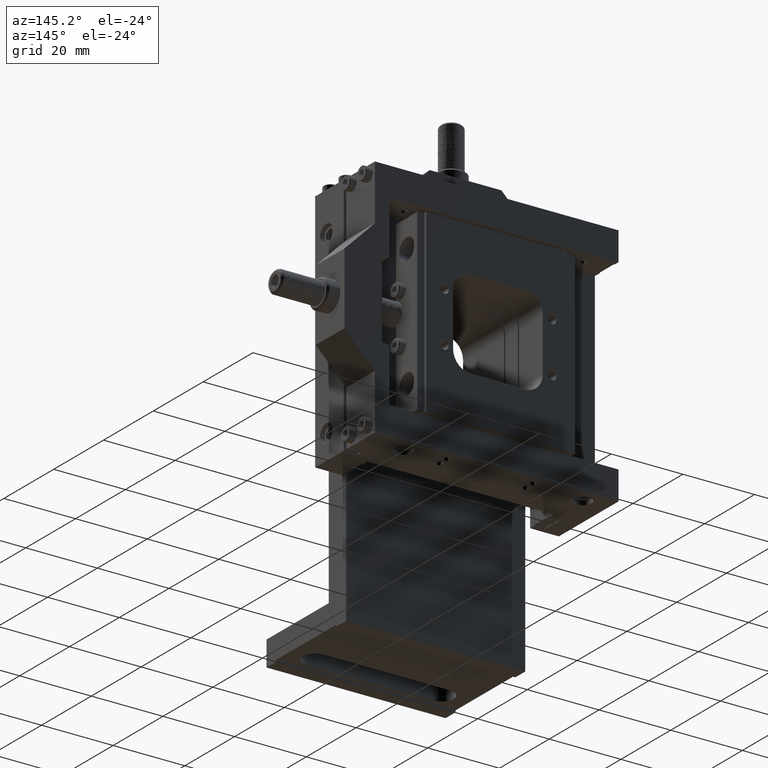
[diagram: clean part render]
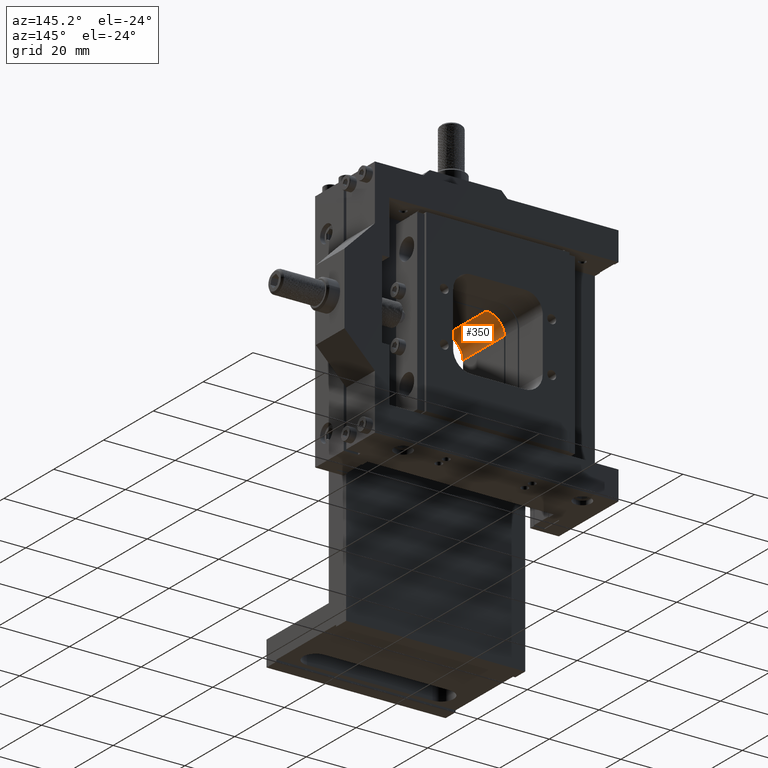
[diagram: same view with one face highlighted and labeled with its STEP entity id]
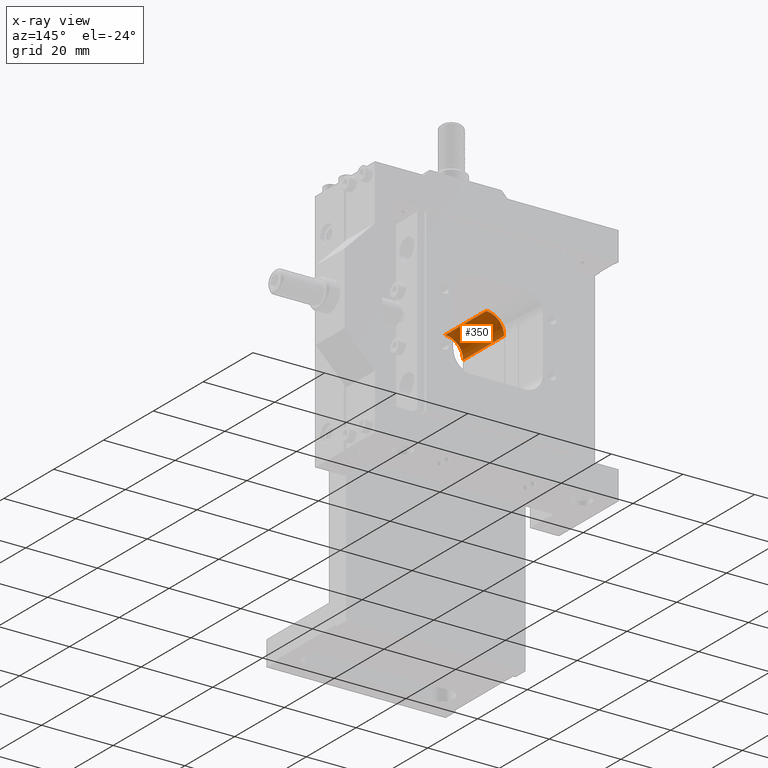
[diagram: x-ray of the same camera — body ghosted, the highlighted face saturated]
A machine part, auxiliary view. The second image highlights one B-rep face of the part: STEP entity #350.
The next image is the same camera in x-ray: the body ghosted, the highlighted face saturated — about 2% of this face is hidden behind the body in this view.
In plain terms, the highlighted cylindrical surface (edge-blend (fillet) strip) has radius 5 mm, axis along (0, -1, 0).
Its self-contained STEP definition (entity closure, byte-faithful):
#350=ADVANCED_FACE('',(#1875),#22283,.F.);
#1875=FACE_OUTER_BOUND('',#3412,.T.);
#3412=EDGE_LOOP('',(#5560,#5561,#5562,#5563,#5564));
#5560=ORIENTED_EDGE('',*,*,#12897,.F.);
#5561=ORIENTED_EDGE('',*,*,#12894,.T.);
#5562=ORIENTED_EDGE('',*,*,#12898,.F.);
#5563=ORIENTED_EDGE('',*,*,#12899,.F.);
#5564=ORIENTED_EDGE('',*,*,#12896,.F.);
#12894=EDGE_CURVE('',#20329,#20154,#17527,.T.);
#12896=EDGE_CURVE('',#20330,#20195,#17529,.T.);
#12897=EDGE_CURVE('',#20329,#20330,#16419,.T.);
#12898=EDGE_CURVE('',#20153,#20154,#16420,.T.);
#12899=EDGE_CURVE('',#20195,#20153,#16421,.T.);
#16419=(
BOUNDED_CURVE()
B_SPLINE_CURVE(2,(#28775,#28776,#28777),.UNSPECIFIED.,.F.,.F.)
B_SPLINE_CURVE_WITH_KNOTS((3,3),(-7.85398163397438,0.),.UNSPECIFIED.)
CURVE()
GEOMETRIC_REPRESENTATION_ITEM()
RATIONAL_B_SPLINE_CURVE((1.,0.707106781186556,1.))
REPRESENTATION_ITEM('')
);
#16420=(
BOUNDED_CURVE()
B_SPLINE_CURVE(2,(#28778,#28779,#28780),.UNSPECIFIED.,.F.,.F.)
B_SPLINE_CURVE_WITH_KNOTS((3,3),(-0.200038352033852,0.),.UNSPECIFIED.)
CURVE()
GEOMETRIC_REPRESENTATION_ITEM()
RATIONAL_B_SPLINE_CURVE((1.,0.999799929960239,1.))
REPRESENTATION_ITEM('')
);
#16421=(
BOUNDED_CURVE()
B_SPLINE_CURVE(2,(#28781,#28782,#28783),.UNSPECIFIED.,.F.,.F.)
B_SPLINE_CURVE_WITH_KNOTS((3,3),(-7.6539432819405,0.),.UNSPECIFIED.)
CURVE()
GEOMETRIC_REPRESENTATION_ITEM()
RATIONAL_B_SPLINE_CURVE((1.,0.721109214494128,1.))
REPRESENTATION_ITEM('')
);
#17527=B_SPLINE_CURVE_WITH_KNOTS('',1,(#28769,#28770),.UNSPECIFIED.,.F.,
 .F.,(2,2),(-16.5,0.),.UNSPECIFIED.);
#17529=B_SPLINE_CURVE_WITH_KNOTS('',1,(#28773,#28774),.UNSPECIFIED.,.F.,
 .F.,(2,2),(-16.5,0.),.UNSPECIFIED.);
#20153=VERTEX_POINT('',#27290);
#20154=VERTEX_POINT('',#27291);
#20195=VERTEX_POINT('',#27332);
#20329=VERTEX_POINT('',#27466);
#20330=VERTEX_POINT('',#27467);
#22283=CYLINDRICAL_SURFACE('',#23913,5.00000000000001);
#23913=AXIS2_PLACEMENT_3D('',#26731,#25258,$);
#25258=DIRECTION('',(0.,-1.,0.));
#26731=CARTESIAN_POINT('',(-19.4999975952793,4.74999383561402,77.5008218490967));
#27290=CARTESIAN_POINT('',(-19.6999825875632,-3.50000616438599,82.4968208485822));
#27291=CARTESIAN_POINT('',(-19.4999975952796,-3.50000616438599,82.5008218490968));
#27332=CARTESIAN_POINT('',(-24.4999975952796,-3.50000616438599,77.5008218490969));
#27466=CARTESIAN_POINT('',(-19.4999975952794,12.999993835614,82.5008218490967));
#27467=CARTESIAN_POINT('',(-24.4999975952793,12.999993835614,77.5008218490967));
#28769=CARTESIAN_POINT('',(-19.4999975952794,12.999993835614,82.5008218490967));
#28770=CARTESIAN_POINT('',(-19.4999975952796,-3.50000616438599,82.5008218490968));
#28773=CARTESIAN_POINT('',(-24.4999975952793,12.999993835614,77.5008218490967));
#28774=CARTESIAN_POINT('',(-24.4999975952796,-3.50000616438599,77.5008218490969));
#28775=CARTESIAN_POINT('',(-19.4999975952794,12.999993835614,82.5008218490966));
#28776=CARTESIAN_POINT('',(-24.4999975952792,12.999993835614,82.5008218490965));
#28777=CARTESIAN_POINT('',(-24.4999975952793,12.999993835614,77.5008218490967));
#28778=CARTESIAN_POINT('',(-19.6999825875632,-3.50000616438599,82.4968208485822));
#28779=CARTESIAN_POINT('',(-19.6000301144374,-3.50000616438599,82.5008218490969));
#28780=CARTESIAN_POINT('',(-19.4999975952796,-3.50000616438599,82.5008218490968));
#28781=CARTESIAN_POINT('',(-24.4999975952796,-3.50000616438599,77.5008218490969));
#28782=CARTESIAN_POINT('',(-24.4999975952796,-3.50000616438599,82.3046809053242));
#28783=CARTESIAN_POINT('',(-19.6999825875632,-3.50000616438599,82.4968208485822));